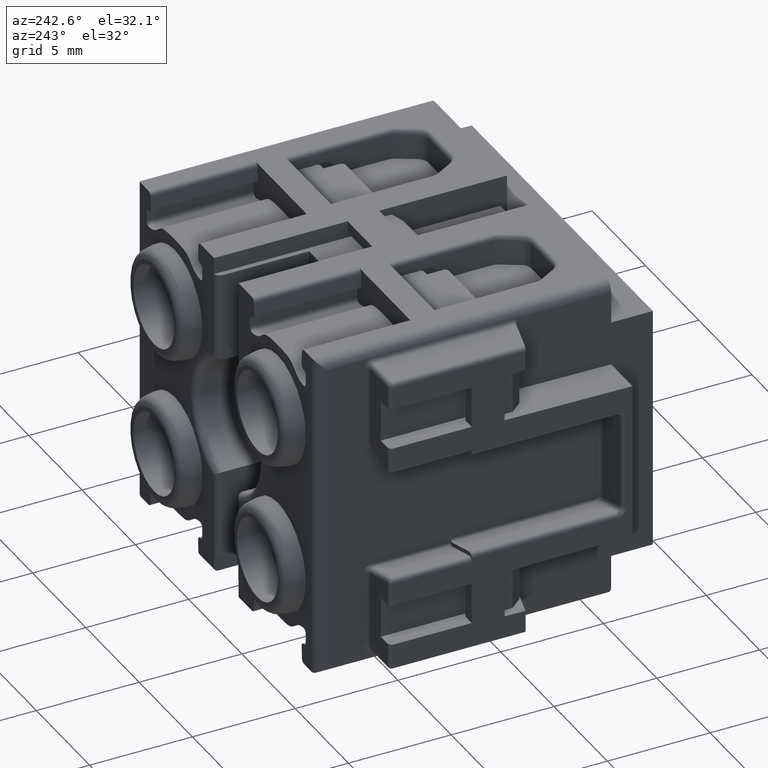
[diagram: clean part render]
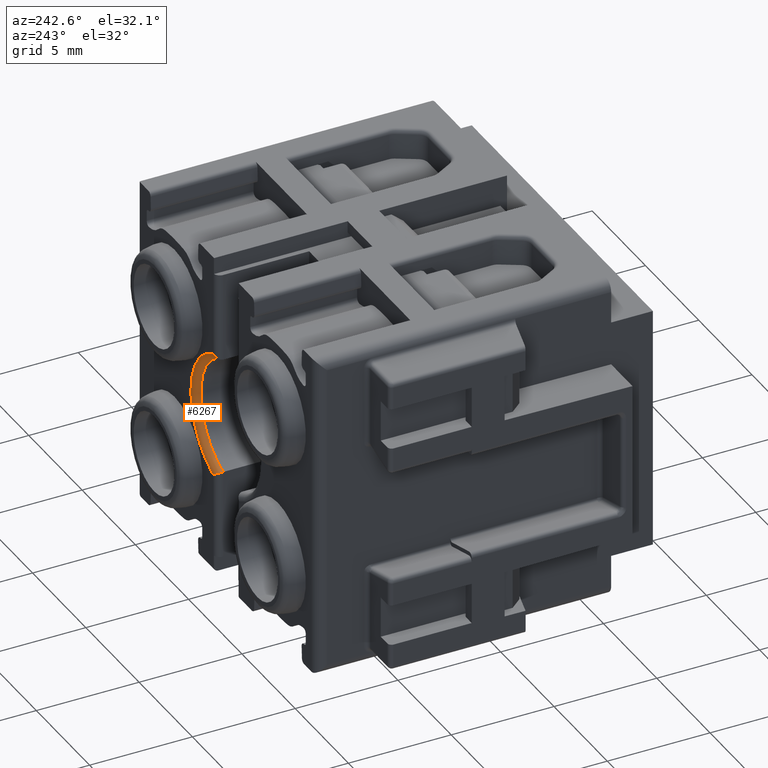
[diagram: same view with one face highlighted and labeled with its STEP entity id]
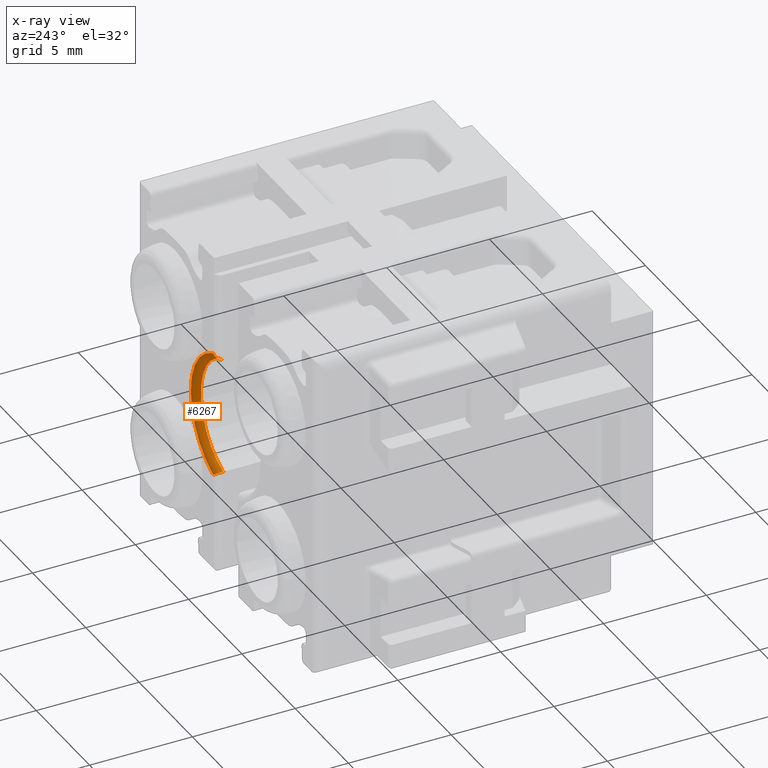
[diagram: x-ray of the same camera — body ghosted, the highlighted face saturated]
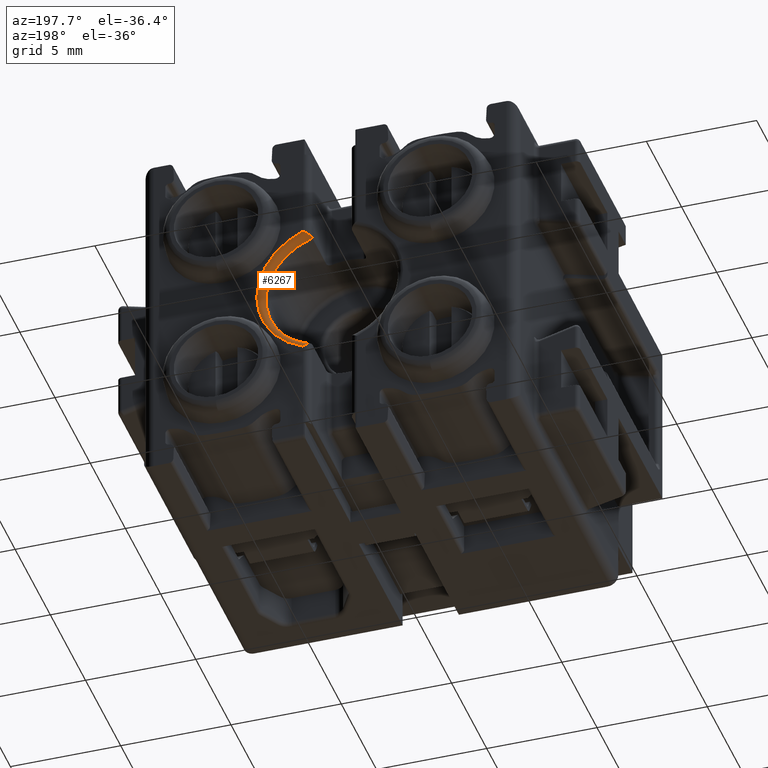
[diagram: same view with one face highlighted and labeled with its STEP entity id]
A machine part, auxiliary view. The second image highlights one B-rep face of the part: STEP entity #6267.
The next image is the same camera in x-ray: the body ghosted, the highlighted face saturated — about 0% of this face is hidden behind the body in this view.
A second angle (auxiliary view) of the same face is appended — the face is thin or edge-on in the first view.
In plain terms, the highlighted toroidal blend (fillet) surface has major radius 3.32 mm and minor (blend) radius 0.32 mm.
Its self-contained STEP definition (entity closure, byte-faithful):
#136 = AXIS2_PLACEMENT_3D ( 'NONE', #7995, #7942, #7953 ) ;
#185 = TOROIDAL_SURFACE ( 'NONE', #136, 3.319999999999999800, 0.3200000000000000100 ) ;
#585 = AXIS2_PLACEMENT_3D ( 'NONE', #3236, #3249, #3244 ) ;
#607 = CIRCLE ( 'NONE', #585, 3.319999999999999800 ) ;
#1206 = EDGE_CURVE ( 'NONE', #14588, #14614, #607, .T. ) ;
#2398 = ORIENTED_EDGE ( 'NONE', *, *, #6735, .F. ) ;
#2432 = ORIENTED_EDGE ( 'NONE', *, *, #20030, .F. ) ;
#2450 = ORIENTED_EDGE ( 'NONE', *, *, #6676, .F. ) ;
#2495 = ORIENTED_EDGE ( 'NONE', *, *, #1206, .F. ) ;
#3236 = CARTESIAN_POINT ( 'NONE',  ( 19.65655536988765200, 43.34889991280945100, -10.17283801961436000 ) ) ;
#3244 = DIRECTION ( 'NONE',  ( 2.090028284309406400E-015, -2.717036769602228200E-014, 1.000000000000000000 ) ) ;
#3249 = DIRECTION ( 'NONE',  ( -0.0000000000000000000, -1.000000000000000000, -2.793185071074504800E-014 ) ) ;
#4856 = CIRCLE ( 'NONE', #4873, 3.000000000000000000 ) ;
#4873 = AXIS2_PLACEMENT_3D ( 'NONE', #13938, #13959, #13951 ) ;
#6267 = ADVANCED_FACE ( 'NONE', ( #7960 ), #185, .T. ) ;
#6676 = EDGE_CURVE ( 'NONE', #14614, #14506, #13510, .T. ) ;
#6735 = EDGE_CURVE ( 'NONE', #14474, #14588, #13520, .T. ) ;
#7942 = DIRECTION ( 'NONE',  ( 0.0000000000000000000, 1.000000000000000000, 2.793185071074504800E-014 ) ) ;
#7953 = DIRECTION ( 'NONE',  ( 0.0000000000000000000, -2.793185071074504800E-014, 1.000000000000000000 ) ) ;
#7960 = FACE_OUTER_BOUND ( 'NONE', #10432, .T. ) ;
#7995 = CARTESIAN_POINT ( 'NONE',  ( 19.65655536988765200, 43.02889991280945000, -10.17283801961436000 ) ) ;
#10432 = EDGE_LOOP ( 'NONE', ( #2398, #2432, #2450, #2495 ) ) ;
#13510 = B_SPLINE_CURVE_WITH_KNOTS ( 'NONE', 3,
 ( #19470, #19452, #19468, #19457, #19472, #19459 ),
 .UNSPECIFIED., .F., .F.,
 ( 4, 2, 4 ),
 ( -3.709869691041146900E-006, 0.0002742555591758015200, 0.0005522209880426442000 ),
 .UNSPECIFIED. ) ;
#13520 = B_SPLINE_CURVE_WITH_KNOTS ( 'NONE', 3,
 ( #19697, #19654, #19663, #19693, #19653, #19698 ),
 .UNSPECIFIED., .F., .F.,
 ( 4, 2, 4 ),
 ( 0.0000000000000000000, 0.0002785590619809368200, 0.0005571181239618736400 ),
 .UNSPECIFIED. ) ;
#13938 = CARTESIAN_POINT ( 'NONE',  ( 19.65655536988765200, 43.02889991280945000, -10.17283801961436000 ) ) ;
#13951 = DIRECTION ( 'NONE',  ( 0.0000000000000000000, -2.775557561562891400E-014, 1.000000000000000000 ) ) ;
#13959 = DIRECTION ( 'NONE',  ( 0.0000000000000000000, 1.000000000000000000, 2.793185071074504800E-014 ) ) ;
#14474 = VERTEX_POINT ( 'NONE', #17558 ) ;
#14506 = VERTEX_POINT ( 'NONE', #17652 ) ;
#14588 = VERTEX_POINT ( 'NONE', #17670 ) ;
#14614 = VERTEX_POINT ( 'NONE', #17689 ) ;
#17558 = CARTESIAN_POINT ( 'NONE',  ( 20.55655536988765100, 43.02889991280950700, -13.03465562386520000 ) ) ;
#17652 = CARTESIAN_POINT ( 'NONE',  ( 20.55655536988765100, 43.02889991280935100, -7.311020415363529400 ) ) ;
#17670 = CARTESIAN_POINT ( 'NONE',  ( 20.87655536988765100, 43.34889991280950700, -13.26055562328213900 ) ) ;
#17689 = CARTESIAN_POINT ( 'NONE',  ( 20.87655536988765100, 43.34889991280935100, -7.085120415946560600 ) ) ;
#19452 = CARTESIAN_POINT ( 'NONE',  ( 20.79994802624419500, 43.34889991280935100, -7.137239752270139600 ) ) ;
#19457 = CARTESIAN_POINT ( 'NONE',  ( 20.60003050781336900, 43.21006207237818600, -7.278960953492609900 ) ) ;
#19459 = CARTESIAN_POINT ( 'NONE',  ( 20.55655536988765100, 43.02889991280935100, -7.311020415363529400 ) ) ;
#19468 = CARTESIAN_POINT ( 'NONE',  ( 20.72291203900733300, 43.32161044265214400, -7.191122589725043000 ) ) ;
#19470 = CARTESIAN_POINT ( 'NONE',  ( 20.87655536988765100, 43.34889991280935100, -7.085120415946560600 ) ) ;
#19472 = CARTESIAN_POINT ( 'NONE',  ( 20.55655536988764700, 43.12325254417599000, -7.311020415363533000 ) ) ;
#19653 = CARTESIAN_POINT ( 'NONE',  ( 20.79978442080524900, 43.34889991280950000, -13.20832497900200200 ) ) ;
#19654 = CARTESIAN_POINT ( 'NONE',  ( 20.55655536988764700, 43.12325119336580300, -13.03465562386519100 ) ) ;
#19663 = CARTESIAN_POINT ( 'NONE',  ( 20.60002932337020100, 43.21005974897677500, -13.06671421087082800 ) ) ;
#19693 = CARTESIAN_POINT ( 'NONE',  ( 20.72290794573234200, 43.32160797503733100, -13.15455055174116700 ) ) ;
#19697 = CARTESIAN_POINT ( 'NONE',  ( 20.55655536988765100, 43.02889991280950700, -13.03465562386520000 ) ) ;
#19698 = CARTESIAN_POINT ( 'NONE',  ( 20.87655536988765100, 43.34889991280950700, -13.26055562328213900 ) ) ;
#20030 = EDGE_CURVE ( 'NONE', #14506, #14474, #4856, .T. ) ;